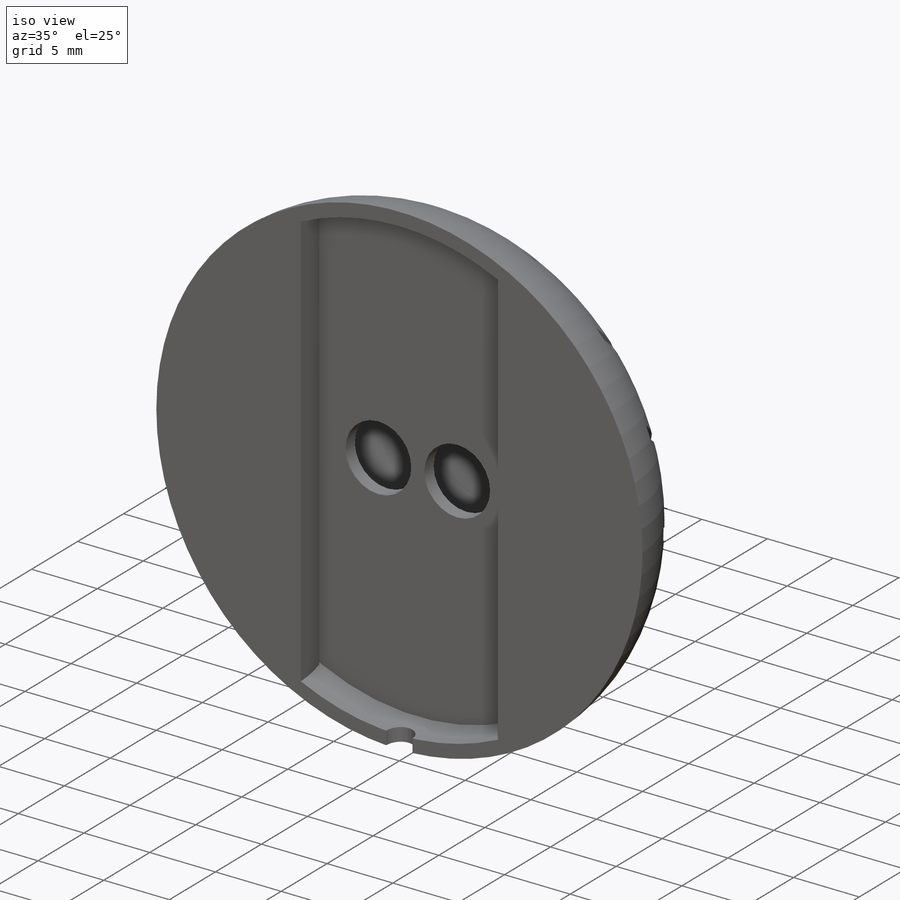
[diagram: iso view]
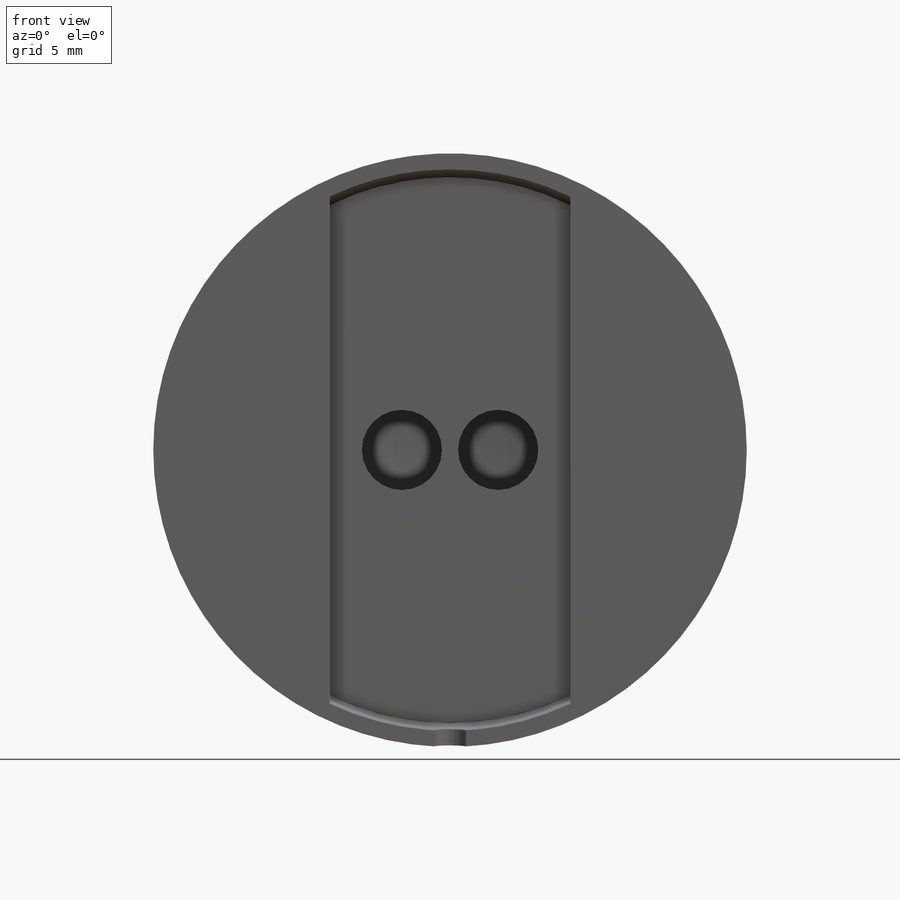
[diagram: front view]
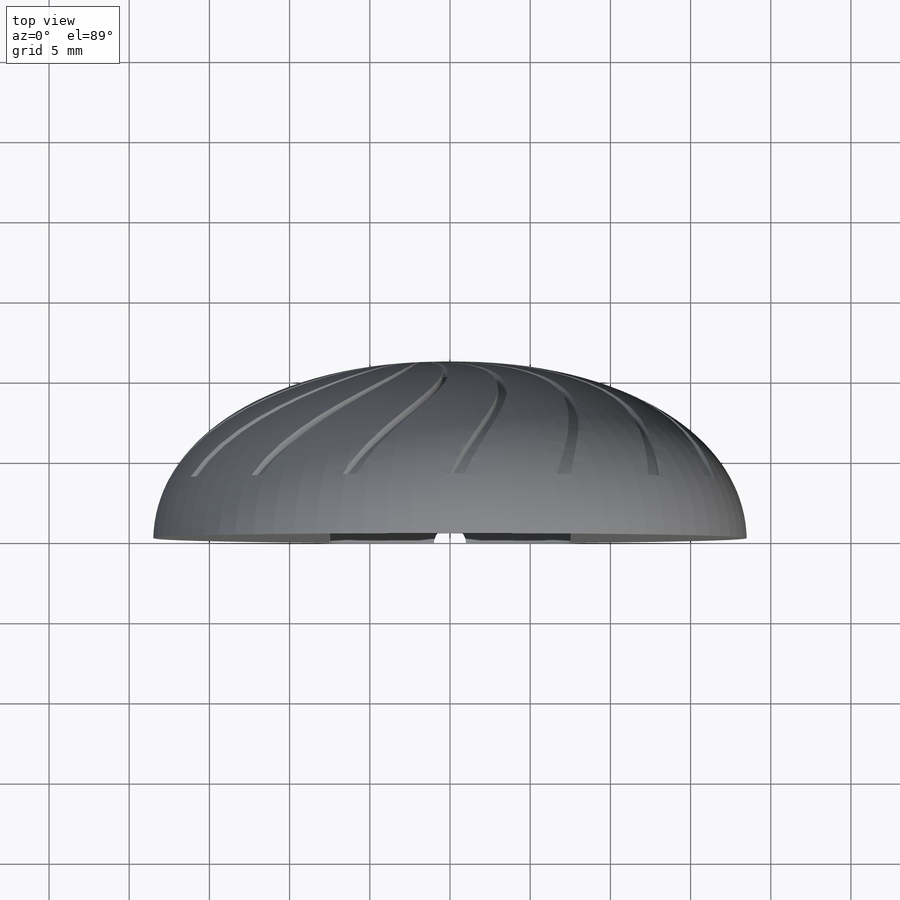
[diagram: top view]
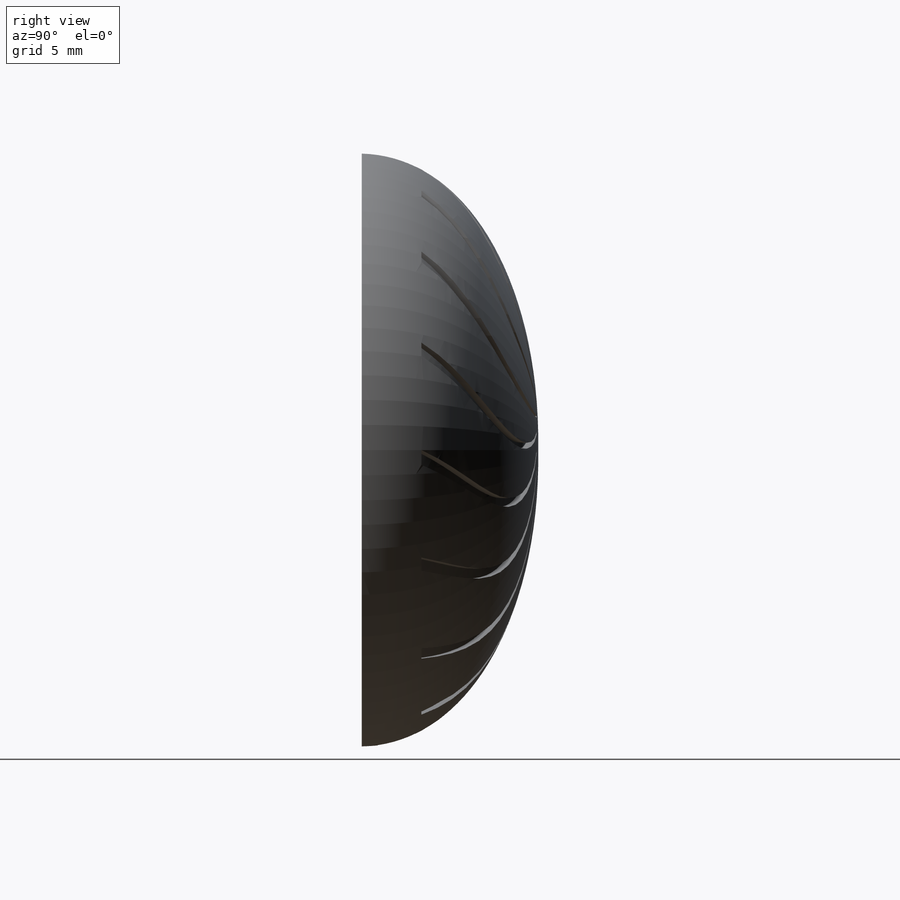
[diagram: right view]
SOLIDWORKS PART (.sldprt)
format: sldprt  version: not decoded by parser v0  size: 676,864 bytes
history: native  units: mm
features: sketch x6, cut_extrude x3, plane x2, extrude x2, material x1, revolve x1, shell x1 (+12 scaffold rows collapsed)
feature tree (28):
  scaffold x12  (default folders/planes/origin — collapsed)
  material  "Material <not specified>"
  sketch  "Sketch1"  dims[D1=10.0mm D2=17.5mm]
  revolve  "Revolve1"  Angle=360deg
  shell  "Shell2"  Thickness=1mm
  plane  "Plane1"  Offset=12mm
  sketch  "Sketch4"  dims[D1=3.0mm D2=14.5mm D3=7.25mm D4=3.0mm D5=16.0]
  cut_extrude  "Cut-Extrude8"  Depth=0.5mm
  plane  "Plane2"  Offset=3mm
  sketch  "Sketch5"  dims[D1=34.0mm]
  extrude  "Boss-Extrude3"  Depth=1mm
  sketch  "Sketch6"  dims[D1=5.0mm D2=3.0mm D3=2.0]
  cut_extrude  "Cut-Extrude9"  Depth=1mm
  sketch  "Sketch7"  dims[D1=2.0mm]
  cut_extrude  "Cut-Extrude10"  [1 undecoded]
  sketch  "Sketch8"  dims[D1=35.0mm D2=7.5mm]
  extrude  "Boss-Extrude4"  [1 undecoded]
decode coverage: 11 of 13 modeling features carry decoded parameters
note: 2 parameter values undecoded
note: suppression state not decoded; provenance and decode notes live in map.json
